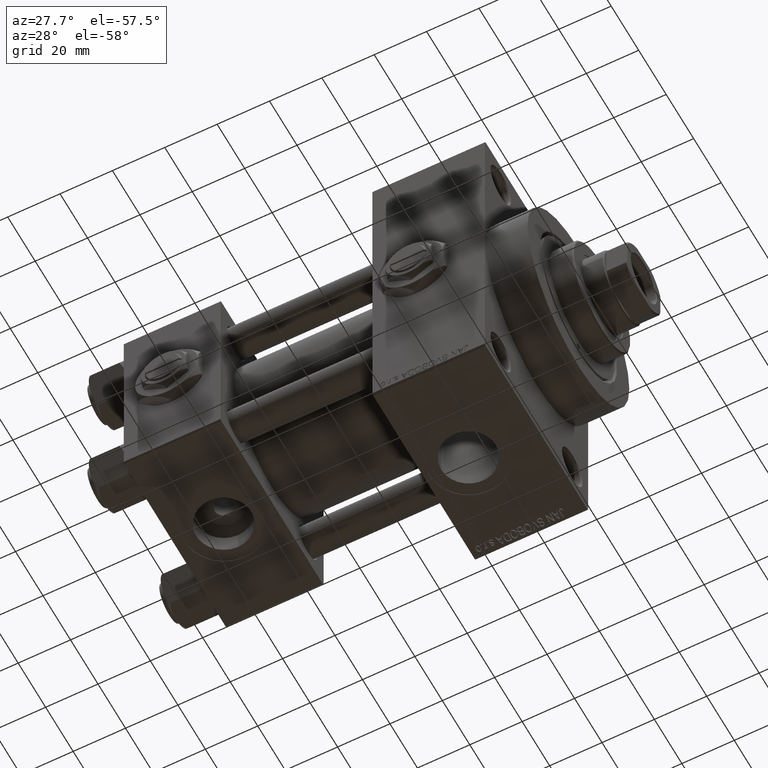
[diagram: clean part render]
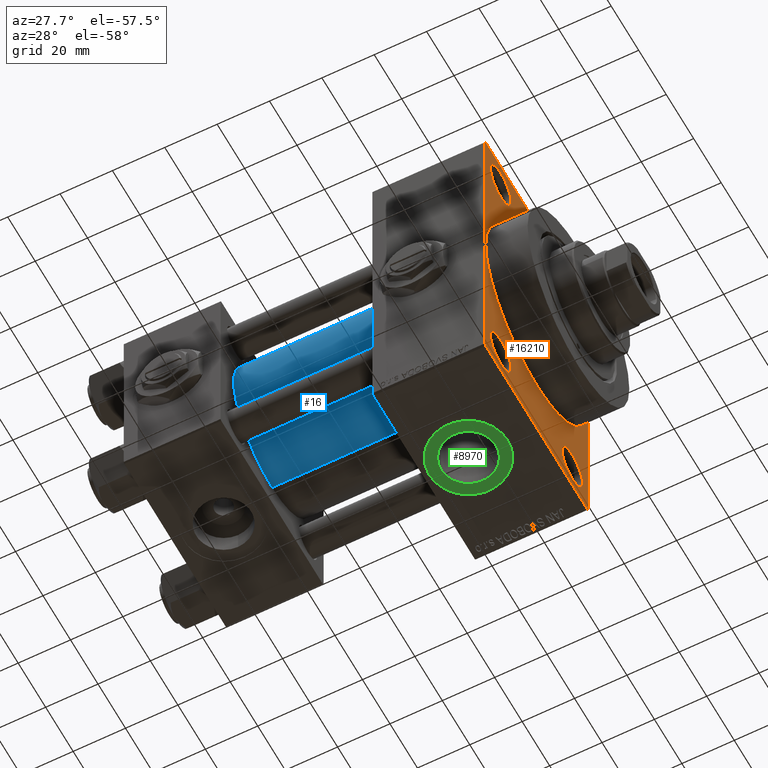
[diagram: same view with three faces highlighted in distinct colors, each labeled with its STEP entity id]
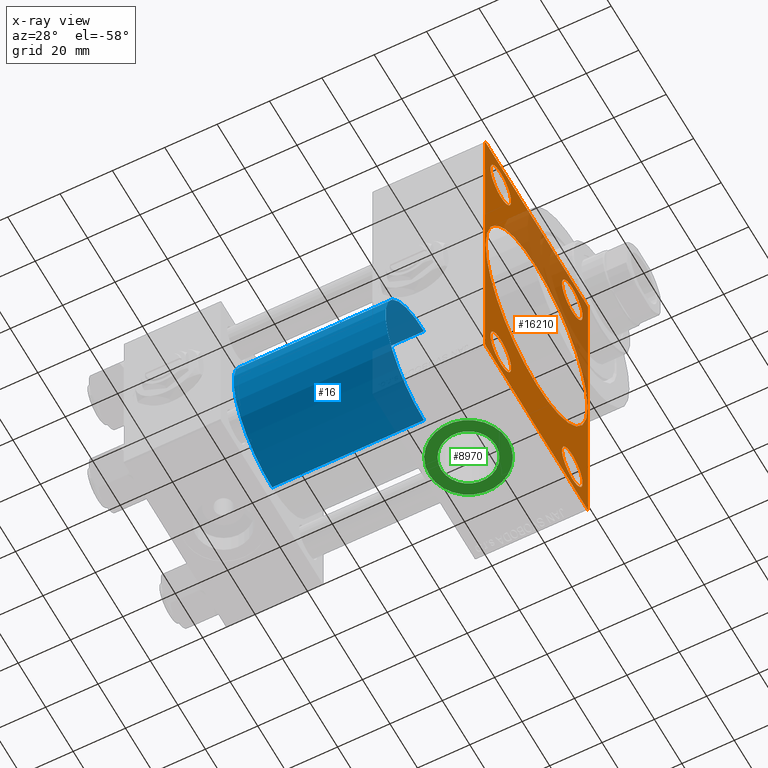
[diagram: x-ray of the same camera — body ghosted, the three highlighted faces saturated]
A machine part, auxiliary view with three faces highlighted in distinct colors.
The next image is the same camera in x-ray (body ghosted, the three faces saturated) — at least one of them is partly hidden behind the body in this view.
Their STEP definitions:

[orange] entity #16210 — the highlighted planar face has unit normal (-1, 0, 0).
#120 = FACE_BOUND ( 'NONE', #10987, .T. ) ;
#233 = CARTESIAN_POINT ( 'NONE',  ( 138.0000000000000000, -25.99999999999999645, 44.99999999999999289 ) ) ;
#560 = DIRECTION ( 'NONE',  ( 1.000000000000000000, 0.000000000000000000, 0.000000000000000000 ) ) ;
#792 = CARTESIAN_POINT ( 'NONE',  ( 138.0000000000000000, 36.99999999999997158, 63.99999999999998579 ) ) ;
#854 = FACE_OUTER_BOUND ( 'NONE', #31528, .T. ) ;
#1001 = VERTEX_POINT ( 'NONE', #1464 ) ;
#1464 = CARTESIAN_POINT ( 'NONE',  ( 138.0000000000000000, -36.99999999999995737, 63.99999999999997158 ) ) ;
#1705 = VECTOR ( 'NONE', #42483, 1000.000000000000000 ) ;
#1928 = DIRECTION ( 'NONE',  ( 0.000000000000000000, -1.000000000000000000, -1.850371707708594563E-16 ) ) ;
#2566 = AXIS2_PLACEMENT_3D ( 'NONE', #7309, #22551, #10826 ) ;
#2650 = VERTEX_POINT ( 'NONE', #28187 ) ;
#3184 = EDGE_CURVE ( 'NONE', #14029, #5385, #40077, .T. ) ;
#3358 = DIRECTION ( 'NONE',  ( 0.000000000000000000, 0.000000000000000000, 1.000000000000000000 ) ) ;
#4049 = LINE ( 'NONE', #38562, #7154 ) ;
#4632 = FACE_BOUND ( 'NONE', #46311, .T. ) ;
#5128 = CARTESIAN_POINT ( 'NONE',  ( 138.0000000000000000, 26.00000000000000000, -60.00000000000000000 ) ) ;
#5129 = VERTEX_POINT ( 'NONE', #6651 ) ;
#5385 = VERTEX_POINT ( 'NONE', #24839 ) ;
#5454 = LINE ( 'NONE', #8959, #11989 ) ;
#5535 = CARTESIAN_POINT ( 'NONE',  ( 138.0000000000000000, 37.50000000000000000, 63.99999999999998579 ) ) ;
#5628 = ORIENTED_EDGE ( 'NONE', *, *, #43759, .T. ) ;
#5783 = LINE ( 'NONE', #5535, #29741 ) ;
#6087 = CIRCLE ( 'NONE', #37255, 7.500000000000007105 ) ;
#6186 = DIRECTION ( 'NONE',  ( -1.000000000000000000, 0.000000000000000000, -0.000000000000000000 ) ) ;
#6376 = CARTESIAN_POINT ( 'NONE',  ( 138.0000000000000000, -25.99999999999999645, 52.50000000000000000 ) ) ;
#6379 = EDGE_LOOP ( 'NONE', ( #48957, #5628 ) ) ;
#6598 = VERTEX_POINT ( 'NONE', #233 ) ;
#6651 = CARTESIAN_POINT ( 'NONE',  ( 138.0000000000000000, -36.99999999999993605, -64.00000000000001421 ) ) ;
#6721 = DIRECTION ( 'NONE',  ( -1.000000000000000000, 0.000000000000000000, -0.000000000000000000 ) ) ;
#6827 = EDGE_CURVE ( 'NONE', #8222, #32112, #16234, .T. ) ;
#7154 = VECTOR ( 'NONE', #8545, 999.9999999999998863 ) ;
#7309 = CARTESIAN_POINT ( 'NONE',  ( 138.0000000000000000, -25.99999999999999645, -52.49999999999999289 ) ) ;
#7320 = AXIS2_PLACEMENT_3D ( 'NONE', #13928, #6186, #36685 ) ;
#7338 = ORIENTED_EDGE ( 'NONE', *, *, #17865, .T. ) ;
#7709 = VECTOR ( 'NONE', #20802, 1000.000000000000000 ) ;
#7943 = VERTEX_POINT ( 'NONE', #38820 ) ;
#8222 = VERTEX_POINT ( 'NONE', #12495 ) ;
#8545 = DIRECTION ( 'NONE',  ( 0.000000000000000000, 0.7071067811865574537, -0.7071067811865376918 ) ) ;
#8959 = CARTESIAN_POINT ( 'NONE',  ( 138.0000000000000000, 37.50000000000000000, 63.99999999999998579 ) ) ;
#9245 = CARTESIAN_POINT ( 'NONE',  ( 138.0000000000000000, -25.99999999999999645, 60.00000000000000711 ) ) ;
#9867 = LINE ( 'NONE', #29107, #30008 ) ;
#10033 = AXIS2_PLACEMENT_3D ( 'NONE', #27621, #42910, #18890 ) ;
#10227 = CARTESIAN_POINT ( 'NONE',  ( 138.0000000000000000, 0.000000000000000000, 0.000000000000000000 ) ) ;
#10510 = ORIENTED_EDGE ( 'NONE', *, *, #42091, .T. ) ;
#10621 = EDGE_CURVE ( 'NONE', #1001, #21287, #36147, .T. ) ;
#10677 = VERTEX_POINT ( 'NONE', #15112 ) ;
#10826 = DIRECTION ( 'NONE',  ( 0.000000000000000000, 0.000000000000000000, 1.000000000000000000 ) ) ;
#10987 = EDGE_LOOP ( 'NONE', ( #41232, #49527 ) ) ;
#11122 = CARTESIAN_POINT ( 'NONE',  ( 138.0000000000000000, 0.000000000000000000, 0.000000000000000000 ) ) ;
#11410 = FACE_BOUND ( 'NONE', #19301, .T. ) ;
#11947 = LINE ( 'NONE', #19200, #1705 ) ;
#11989 = VECTOR ( 'NONE', #1928, 1000.000000000000000 ) ;
#12182 = VERTEX_POINT ( 'NONE', #27256 ) ;
#12484 = VECTOR ( 'NONE', #43839, 1000.000000000000000 ) ;
#12495 = CARTESIAN_POINT ( 'NONE',  ( 138.0000000000000000, 26.00000000000000000, -44.99999999999998579 ) ) ;
#12586 = CARTESIAN_POINT ( 'NONE',  ( 138.0000000000000000, -25.99999999999999645, -60.00000000000000000 ) ) ;
#12642 = ORIENTED_EDGE ( 'NONE', *, *, #33443, .T. ) ;
#13422 = CARTESIAN_POINT ( 'NONE',  ( 138.0000000000000000, 26.00000000000000000, -52.49999999999999289 ) ) ;
#13507 = ORIENTED_EDGE ( 'NONE', *, *, #22021, .F. ) ;
#13928 = CARTESIAN_POINT ( 'NONE',  ( 138.0000000000000000, 26.00000000000000000, 52.49999999999999289 ) ) ;
#14029 = VERTEX_POINT ( 'NONE', #12586 ) ;
#14632 = DIRECTION ( 'NONE',  ( 0.000000000000000000, 0.000000000000000000, 1.000000000000000000 ) ) ;
#14805 = AXIS2_PLACEMENT_3D ( 'NONE', #49000, #6721, #45249 ) ;
#15112 = CARTESIAN_POINT ( 'NONE',  ( 138.0000000000000000, 37.50000000000000000, 63.49999999999998579 ) ) ;
#15396 = PLANE ( 'NONE',  #10033 ) ;
#15681 = ORIENTED_EDGE ( 'NONE', *, *, #17961, .T. ) ;
#16201 = AXIS2_PLACEMENT_3D ( 'NONE', #10227, #21217, #25462 ) ;
#16210 = ADVANCED_FACE ( 'NONE', ( #30885, #31379, #4632, #11410, #120, #854 ), #15396, .F. ) ;
#16234 = CIRCLE ( 'NONE', #21020, 7.500000000000007105 ) ;
#16899 = CIRCLE ( 'NONE', #7320, 7.500000000000007105 ) ;
#17035 = DIRECTION ( 'NONE',  ( 0.000000000000000000, -5.421010862427522170E-17, -1.000000000000000000 ) ) ;
#17144 = CARTESIAN_POINT ( 'NONE',  ( 138.0000000000000000, -37.49999999999999289, 63.49999999999994316 ) ) ;
#17315 = CARTESIAN_POINT ( 'NONE',  ( 138.0000000000000000, -25.99999999999999645, -52.49999999999999289 ) ) ;
#17865 = EDGE_CURVE ( 'NONE', #10677, #18694, #35060, .T. ) ;
#17961 = EDGE_CURVE ( 'NONE', #21287, #2650, #24554, .T. ) ;
#18353 = DIRECTION ( 'NONE',  ( -1.000000000000000000, 0.000000000000000000, -0.000000000000000000 ) ) ;
#18694 = VERTEX_POINT ( 'NONE', #36447 ) ;
#18890 = DIRECTION ( 'NONE',  ( -0.000000000000000000, 0.000000000000000000, 1.000000000000000000 ) ) ;
#19180 = ORIENTED_EDGE ( 'NONE', *, *, #41935, .T. ) ;
#19200 = CARTESIAN_POINT ( 'NONE',  ( 138.0000000000000000, 37.49999999999999289, -63.50000000000001421 ) ) ;
#19301 = EDGE_LOOP ( 'NONE', ( #10510, #26267 ) ) ;
#19328 = CIRCLE ( 'NONE', #2566, 7.500000000000007105 ) ;
#20802 = DIRECTION ( 'NONE',  ( 0.000000000000000000, 0.000000000000000000, -1.000000000000000000 ) ) ;
#21020 = AXIS2_PLACEMENT_3D ( 'NONE', #48920, #22130, #14632 ) ;
#21176 = VERTEX_POINT ( 'NONE', #9245 ) ;
#21217 = DIRECTION ( 'NONE',  ( 1.000000000000000000, 0.000000000000000000, 0.000000000000000000 ) ) ;
#21287 = VERTEX_POINT ( 'NONE', #33718 ) ;
#21306 = EDGE_CURVE ( 'NONE', #21455, #31023, #45985, .T. ) ;
#21455 = VERTEX_POINT ( 'NONE', #30214 ) ;
#21771 = CIRCLE ( 'NONE', #16201, 37.00000000000000000 ) ;
#22021 = EDGE_CURVE ( 'NONE', #43735, #5129, #9867, .T. ) ;
#22130 = DIRECTION ( 'NONE',  ( -1.000000000000000000, 0.000000000000000000, -0.000000000000000000 ) ) ;
#22551 = DIRECTION ( 'NONE',  ( -1.000000000000000000, 0.000000000000000000, -0.000000000000000000 ) ) ;
#23039 = CARTESIAN_POINT ( 'NONE',  ( 138.0000000000000000, 36.99999999999999289, -64.00000000000000000 ) ) ;
#23504 = EDGE_CURVE ( 'NONE', #32112, #8222, #6087, .T. ) ;
#23842 = ORIENTED_EDGE ( 'NONE', *, *, #35488, .T. ) ;
#24554 = LINE ( 'NONE', #39836, #7709 ) ;
#24749 = CARTESIAN_POINT ( 'NONE',  ( 138.0000000000000000, -25.99999999999999645, 52.50000000000000000 ) ) ;
#24839 = CARTESIAN_POINT ( 'NONE',  ( 138.0000000000000000, -25.99999999999999645, -44.99999999999998579 ) ) ;
#25314 = CIRCLE ( 'NONE', #42908, 7.500000000000007105 ) ;
#25462 = DIRECTION ( 'NONE',  ( 0.000000000000000000, 0.000000000000000000, -1.000000000000000000 ) ) ;
#26267 = ORIENTED_EDGE ( 'NONE', *, *, #21306, .T. ) ;
#26360 = DIRECTION ( 'NONE',  ( -0.000000000000000000, -0.7071067811865524577, -0.7071067811865426878 ) ) ;
#27256 = CARTESIAN_POINT ( 'NONE',  ( 138.0000000000000000, 37.49999999999999289, -63.50000000000001421 ) ) ;
#27621 = CARTESIAN_POINT ( 'NONE',  ( 138.0000000000000000, 0.000000000000000000, 0.000000000000000000 ) ) ;
#28087 = CIRCLE ( 'NONE', #45692, 7.500000000000007105 ) ;
#28164 = EDGE_CURVE ( 'NONE', #21176, #6598, #25314, .T. ) ;
#28187 = CARTESIAN_POINT ( 'NONE',  ( 138.0000000000000000, -37.49999999999999289, -63.49999999999997158 ) ) ;
#28834 = ORIENTED_EDGE ( 'NONE', *, *, #23504, .T. ) ;
#29107 = CARTESIAN_POINT ( 'NONE',  ( 138.0000000000000000, 37.49999999999999289, -64.00000000000000000 ) ) ;
#29741 = VECTOR ( 'NONE', #17035, 1000.000000000000000 ) ;
#30008 = VECTOR ( 'NONE', #48387, 1000.000000000000000 ) ;
#30214 = CARTESIAN_POINT ( 'NONE',  ( 138.0000000000000000, 26.00000000000000000, 60.00000000000000000 ) ) ;
#30885 = FACE_BOUND ( 'NONE', #44507, .T. ) ;
#31023 = VERTEX_POINT ( 'NONE', #44869 ) ;
#31379 = FACE_BOUND ( 'NONE', #6379, .T. ) ;
#31528 = EDGE_LOOP ( 'NONE', ( #15681, #12642, #13507, #19180, #37644, #7338, #23842, #34573 ) ) ;
#32112 = VERTEX_POINT ( 'NONE', #5128 ) ;
#32418 = DIRECTION ( 'NONE',  ( 0.000000000000000000, 0.000000000000000000, 1.000000000000000000 ) ) ;
#32509 = DIRECTION ( 'NONE',  ( 0.000000000000000000, 0.000000000000000000, 1.000000000000000000 ) ) ;
#33443 = EDGE_CURVE ( 'NONE', #2650, #5129, #4049, .T. ) ;
#33718 = CARTESIAN_POINT ( 'NONE',  ( 138.0000000000000000, -37.49999999999999289, 63.49999999999994316 ) ) ;
#34573 = ORIENTED_EDGE ( 'NONE', *, *, #10621, .T. ) ;
#35060 = LINE ( 'NONE', #792, #12484 ) ;
#35488 = EDGE_CURVE ( 'NONE', #18694, #1001, #5454, .T. ) ;
#35636 = ORIENTED_EDGE ( 'NONE', *, *, #42768, .T. ) ;
#35724 = CARTESIAN_POINT ( 'NONE',  ( 138.0000000000000000, 0.000000000000000000, 37.00000000000000000 ) ) ;
#36147 = LINE ( 'NONE', #17144, #45005 ) ;
#36447 = CARTESIAN_POINT ( 'NONE',  ( 138.0000000000000000, 36.99999999999997158, 63.99999999999998579 ) ) ;
#36685 = DIRECTION ( 'NONE',  ( 0.000000000000000000, 0.000000000000000000, 1.000000000000000000 ) ) ;
#37207 = VERTEX_POINT ( 'NONE', #35724 ) ;
#37255 = AXIS2_PLACEMENT_3D ( 'NONE', #13422, #48682, #32418 ) ;
#37644 = ORIENTED_EDGE ( 'NONE', *, *, #43898, .F. ) ;
#37680 = AXIS2_PLACEMENT_3D ( 'NONE', #17315, #41076, #47842 ) ;
#37879 = DIRECTION ( 'NONE',  ( 0.000000000000000000, 0.000000000000000000, -1.000000000000000000 ) ) ;
#38276 = ORIENTED_EDGE ( 'NONE', *, *, #28164, .T. ) ;
#38562 = CARTESIAN_POINT ( 'NONE',  ( 138.0000000000000000, -36.99999999999993605, -64.00000000000001421 ) ) ;
#38820 = CARTESIAN_POINT ( 'NONE',  ( 138.0000000000000000, 4.531193156845206793E-15, -37.00000000000000000 ) ) ;
#39785 = DIRECTION ( 'NONE',  ( -1.000000000000000000, 0.000000000000000000, -0.000000000000000000 ) ) ;
#39836 = CARTESIAN_POINT ( 'NONE',  ( 138.0000000000000000, -37.49999999999999289, 63.99999999999997158 ) ) ;
#40077 = CIRCLE ( 'NONE', #37680, 7.500000000000007105 ) ;
#41076 = DIRECTION ( 'NONE',  ( -1.000000000000000000, 0.000000000000000000, -0.000000000000000000 ) ) ;
#41232 = ORIENTED_EDGE ( 'NONE', *, *, #45270, .F. ) ;
#41463 = CIRCLE ( 'NONE', #43064, 37.00000000000000000 ) ;
#41935 = EDGE_CURVE ( 'NONE', #43735, #12182, #11947, .T. ) ;
#42091 = EDGE_CURVE ( 'NONE', #31023, #21455, #16899, .T. ) ;
#42483 = DIRECTION ( 'NONE',  ( -0.000000000000000000, 0.7071067811865573427, 0.7071067811865378028 ) ) ;
#42768 = EDGE_CURVE ( 'NONE', #6598, #21176, #28087, .T. ) ;
#42908 = AXIS2_PLACEMENT_3D ( 'NONE', #6376, #18353, #3358 ) ;
#42910 = DIRECTION ( 'NONE',  ( -1.000000000000000000, 0.000000000000000000, -0.000000000000000000 ) ) ;
#43064 = AXIS2_PLACEMENT_3D ( 'NONE', #11122, #560, #37879 ) ;
#43735 = VERTEX_POINT ( 'NONE', #23039 ) ;
#43759 = EDGE_CURVE ( 'NONE', #5385, #14029, #19328, .T. ) ;
#43839 = DIRECTION ( 'NONE',  ( 0.000000000000000000, -0.7071067811865672237, 0.7071067811865279218 ) ) ;
#43898 = EDGE_CURVE ( 'NONE', #10677, #12182, #5783, .T. ) ;
#44507 = EDGE_LOOP ( 'NONE', ( #35636, #38276 ) ) ;
#44869 = CARTESIAN_POINT ( 'NONE',  ( 138.0000000000000000, 26.00000000000000000, 44.99999999999998579 ) ) ;
#45005 = VECTOR ( 'NONE', #26360, 1000.000000000000000 ) ;
#45249 = DIRECTION ( 'NONE',  ( 0.000000000000000000, 0.000000000000000000, 1.000000000000000000 ) ) ;
#45270 = EDGE_CURVE ( 'NONE', #37207, #7943, #21771, .T. ) ;
#45692 = AXIS2_PLACEMENT_3D ( 'NONE', #24749, #39785, #32509 ) ;
#45985 = CIRCLE ( 'NONE', #14805, 7.500000000000007105 ) ;
#46311 = EDGE_LOOP ( 'NONE', ( #28834, #48597 ) ) ;
#46880 = EDGE_CURVE ( 'NONE', #7943, #37207, #41463, .T. ) ;
#47842 = DIRECTION ( 'NONE',  ( 0.000000000000000000, 0.000000000000000000, 1.000000000000000000 ) ) ;
#48387 = DIRECTION ( 'NONE',  ( 0.000000000000000000, -1.000000000000000000, -1.850371707708594563E-16 ) ) ;
#48597 = ORIENTED_EDGE ( 'NONE', *, *, #6827, .T. ) ;
#48682 = DIRECTION ( 'NONE',  ( -1.000000000000000000, 0.000000000000000000, -0.000000000000000000 ) ) ;
#48920 = CARTESIAN_POINT ( 'NONE',  ( 138.0000000000000000, 26.00000000000000000, -52.49999999999999289 ) ) ;
#48957 = ORIENTED_EDGE ( 'NONE', *, *, #3184, .T. ) ;
#49000 = CARTESIAN_POINT ( 'NONE',  ( 138.0000000000000000, 26.00000000000000000, 52.49999999999999289 ) ) ;
#49527 = ORIENTED_EDGE ( 'NONE', *, *, #46880, .F. ) ;

[blue] entity #16 — the highlighted cylindrical surface (partial cylindrical patch) has radius 28 mm, axis along (-1, -0, -0).
#16 = ADVANCED_FACE ( 'NONE', ( #640 ), #1145, .T. ) ;
#640 = FACE_OUTER_BOUND ( 'NONE', #30013, .T. ) ;
#1145 = CYLINDRICAL_SURFACE ( 'NONE', #4790, 28.00000000000000000 ) ;
#3736 = DIRECTION ( 'NONE',  ( -1.000000000000000000, -0.000000000000000000, -0.000000000000000000 ) ) ;
#4073 = CARTESIAN_POINT ( 'NONE',  ( 37.00000000000000000, -2.602085213965210642E-15, 0.000000000000000000 ) ) ;
#4447 = CIRCLE ( 'NONE', #32391, 28.00000000000000000 ) ;
#4790 = AXIS2_PLACEMENT_3D ( 'NONE', #30922, #15918, #23906 ) ;
#6020 = VERTEX_POINT ( 'NONE', #42404 ) ;
#6874 = CARTESIAN_POINT ( 'NONE',  ( 95.00000000000000000, -2.602085213965210642E-15, 28.00000000000000000 ) ) ;
#7080 = CARTESIAN_POINT ( 'NONE',  ( 95.00000000000000000, -2.602085213965210642E-15, 0.000000000000000000 ) ) ;
#7183 = AXIS2_PLACEMENT_3D ( 'NONE', #7080, #25835, #45360 ) ;
#7989 = LINE ( 'NONE', #34734, #39131 ) ;
#9920 = ORIENTED_EDGE ( 'NONE', *, *, #28844, .T. ) ;
#10711 = VERTEX_POINT ( 'NONE', #6874 ) ;
#15864 = VERTEX_POINT ( 'NONE', #21969 ) ;
#15918 = DIRECTION ( 'NONE',  ( -1.000000000000000000, -0.000000000000000000, -0.000000000000000000 ) ) ;
#18487 = LINE ( 'NONE', #38491, #37359 ) ;
#20714 = CARTESIAN_POINT ( 'NONE',  ( 37.00000000000000000, -2.602085213965210642E-15, 28.00000000000000000 ) ) ;
#21472 = ORIENTED_EDGE ( 'NONE', *, *, #22051, .T. ) ;
#21969 = CARTESIAN_POINT ( 'NONE',  ( 95.00000000000000000, 8.269258236473776482E-16, -28.00000000000000000 ) ) ;
#22051 = EDGE_CURVE ( 'NONE', #44218, #6020, #4447, .T. ) ;
#22826 = DIRECTION ( 'NONE',  ( 0.000000000000000000, 0.000000000000000000, 1.000000000000000000 ) ) ;
#23906 = DIRECTION ( 'NONE',  ( 0.000000000000000000, 0.000000000000000000, 1.000000000000000000 ) ) ;
#25835 = DIRECTION ( 'NONE',  ( 1.000000000000000000, 0.000000000000000000, 0.000000000000000000 ) ) ;
#28462 = ORIENTED_EDGE ( 'NONE', *, *, #39236, .F. ) ;
#28844 = EDGE_CURVE ( 'NONE', #10711, #44218, #18487, .T. ) ;
#30013 = EDGE_LOOP ( 'NONE', ( #45346, #28462, #9920, #21472 ) ) ;
#30922 = CARTESIAN_POINT ( 'NONE',  ( 95.00000000000000000, -2.602085213965210642E-15, 0.000000000000000000 ) ) ;
#32391 = AXIS2_PLACEMENT_3D ( 'NONE', #4073, #37856, #22826 ) ;
#34734 = CARTESIAN_POINT ( 'NONE',  ( 95.00000000000000000, 8.269258236473776482E-16, -28.00000000000000000 ) ) ;
#35480 = DIRECTION ( 'NONE',  ( -1.000000000000000000, -0.000000000000000000, -0.000000000000000000 ) ) ;
#37359 = VECTOR ( 'NONE', #3736, 1000.000000000000000 ) ;
#37856 = DIRECTION ( 'NONE',  ( 1.000000000000000000, -0.000000000000000000, 0.000000000000000000 ) ) ;
#38435 = EDGE_CURVE ( 'NONE', #15864, #6020, #7989, .T. ) ;
#38491 = CARTESIAN_POINT ( 'NONE',  ( 95.00000000000000000, -2.602085213965210642E-15, 28.00000000000000000 ) ) ;
#39131 = VECTOR ( 'NONE', #35480, 1000.000000000000000 ) ;
#39236 = EDGE_CURVE ( 'NONE', #10711, #15864, #42354, .T. ) ;
#42354 = CIRCLE ( 'NONE', #7183, 28.00000000000000000 ) ;
#42404 = CARTESIAN_POINT ( 'NONE',  ( 37.00000000000000000, 8.269258236473776482E-16, -28.00000000000000000 ) ) ;
#44218 = VERTEX_POINT ( 'NONE', #20714 ) ;
#45346 = ORIENTED_EDGE ( 'NONE', *, *, #38435, .F. ) ;
#45360 = DIRECTION ( 'NONE',  ( 0.000000000000000000, 0.000000000000000000, -1.000000000000000000 ) ) ;

[green] entity #8970 — the highlighted planar face has unit normal (0, 0, -1).
#94 = CARTESIAN_POINT ( 'NONE',  ( 122.4800000000000040, 1.312580877484143227E-14, -63.79999999999999716 ) ) ;
#627 = VERTEX_POINT ( 'NONE', #46086 ) ;
#1813 = AXIS2_PLACEMENT_3D ( 'NONE', #40602, #48120, #13833 ) ;
#2586 = DIRECTION ( 'NONE',  ( 0.000000000000000000, 0.000000000000000000, -1.000000000000000000 ) ) ;
#5316 = DIRECTION ( 'NONE',  ( 0.000000000000000000, 0.000000000000000000, -1.000000000000000000 ) ) ;
#7169 = CIRCLE ( 'NONE', #35092, 15.00000000000000000 ) ;
#8970 = ADVANCED_FACE ( 'NONE', ( #43346, #28056 ), #23548, .T. ) ;
#9445 = CIRCLE ( 'NONE', #37392, 15.00000000000000000 ) ;
#10088 = DIRECTION ( 'NONE',  ( -1.000000000000000000, 0.000000000000000000, 0.000000000000000000 ) ) ;
#12286 = CARTESIAN_POINT ( 'NONE',  ( 97.00000000000000000, 1.184237892933500520E-14, -63.79999999999999716 ) ) ;
#12837 = EDGE_CURVE ( 'NONE', #627, #29966, #38665, .T. ) ;
#13206 = ORIENTED_EDGE ( 'NONE', *, *, #49246, .T. ) ;
#13833 = DIRECTION ( 'NONE',  ( -1.000000000000000000, 0.000000000000000000, 0.000000000000000000 ) ) ;
#16812 = CARTESIAN_POINT ( 'NONE',  ( 112.0000000000000000, 1.184237892933500520E-14, -63.79999999999999716 ) ) ;
#17093 = AXIS2_PLACEMENT_3D ( 'NONE', #46177, #30420, #27383 ) ;
#19796 = DIRECTION ( 'NONE',  ( -1.000000000000000000, 0.000000000000000000, -0.000000000000000000 ) ) ;
#21615 = EDGE_LOOP ( 'NONE', ( #42549, #41312 ) ) ;
#23548 = PLANE ( 'NONE',  #38669 ) ;
#27383 = DIRECTION ( 'NONE',  ( -1.000000000000000000, 0.000000000000000000, 0.000000000000000000 ) ) ;
#28056 = FACE_OUTER_BOUND ( 'NONE', #48016, .T. ) ;
#29966 = VERTEX_POINT ( 'NONE', #94 ) ;
#30141 = EDGE_CURVE ( 'NONE', #48977, #33560, #9445, .T. ) ;
#30420 = DIRECTION ( 'NONE',  ( 0.000000000000000000, 0.000000000000000000, -1.000000000000000000 ) ) ;
#31279 = ORIENTED_EDGE ( 'NONE', *, *, #30141, .T. ) ;
#33560 = VERTEX_POINT ( 'NONE', #12286 ) ;
#35092 = AXIS2_PLACEMENT_3D ( 'NONE', #40369, #2586, #48377 ) ;
#35369 = CIRCLE ( 'NONE', #1813, 10.48000000000000398 ) ;
#37392 = AXIS2_PLACEMENT_3D ( 'NONE', #40357, #39865, #10088 ) ;
#38566 = CARTESIAN_POINT ( 'NONE',  ( 127.0000000000000000, 1.367934912805603400E-14, -63.79999999999999716 ) ) ;
#38665 = CIRCLE ( 'NONE', #17093, 10.48000000000000398 ) ;
#38669 = AXIS2_PLACEMENT_3D ( 'NONE', #16812, #5316, #19796 ) ;
#39865 = DIRECTION ( 'NONE',  ( 0.000000000000000000, 0.000000000000000000, -1.000000000000000000 ) ) ;
#40357 = CARTESIAN_POINT ( 'NONE',  ( 112.0000000000000000, 1.184237892933500520E-14, -63.79999999999999716 ) ) ;
#40369 = CARTESIAN_POINT ( 'NONE',  ( 112.0000000000000000, 1.184237892933500520E-14, -63.79999999999999716 ) ) ;
#40602 = CARTESIAN_POINT ( 'NONE',  ( 112.0000000000000000, 1.184237892933500520E-14, -63.79999999999999716 ) ) ;
#41312 = ORIENTED_EDGE ( 'NONE', *, *, #44594, .F. ) ;
#42549 = ORIENTED_EDGE ( 'NONE', *, *, #12837, .F. ) ;
#43346 = FACE_BOUND ( 'NONE', #21615, .T. ) ;
#44594 = EDGE_CURVE ( 'NONE', #29966, #627, #35369, .T. ) ;
#46086 = CARTESIAN_POINT ( 'NONE',  ( 101.5199999999999960, 1.184237892933500520E-14, -63.79999999999999716 ) ) ;
#46177 = CARTESIAN_POINT ( 'NONE',  ( 112.0000000000000000, 1.184237892933500520E-14, -63.79999999999999716 ) ) ;
#48016 = EDGE_LOOP ( 'NONE', ( #13206, #31279 ) ) ;
#48120 = DIRECTION ( 'NONE',  ( 0.000000000000000000, 0.000000000000000000, -1.000000000000000000 ) ) ;
#48377 = DIRECTION ( 'NONE',  ( -1.000000000000000000, 0.000000000000000000, 0.000000000000000000 ) ) ;
#48977 = VERTEX_POINT ( 'NONE', #38566 ) ;
#49246 = EDGE_CURVE ( 'NONE', #33560, #48977, #7169, .T. ) ;